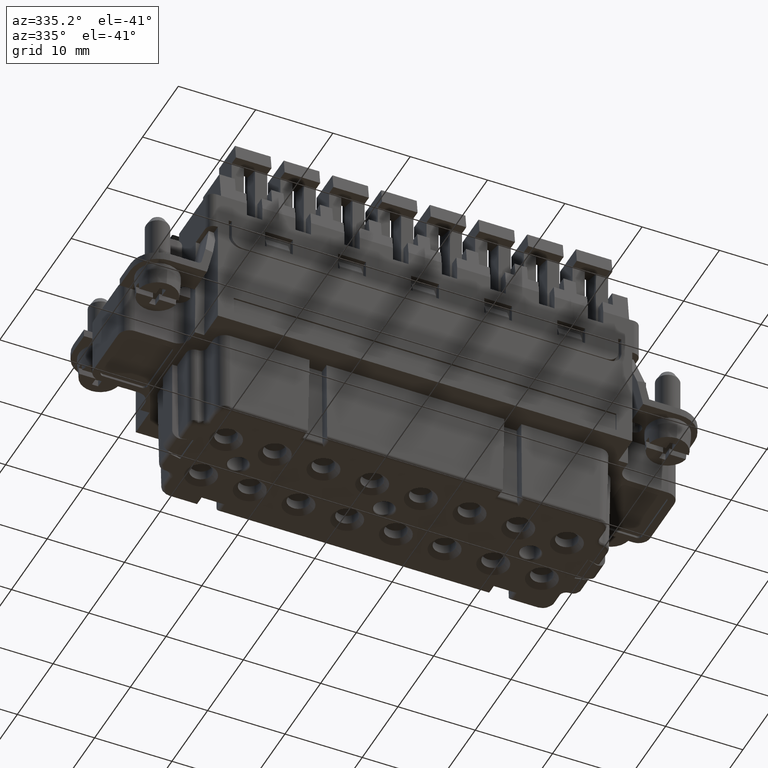
[diagram: clean part render]
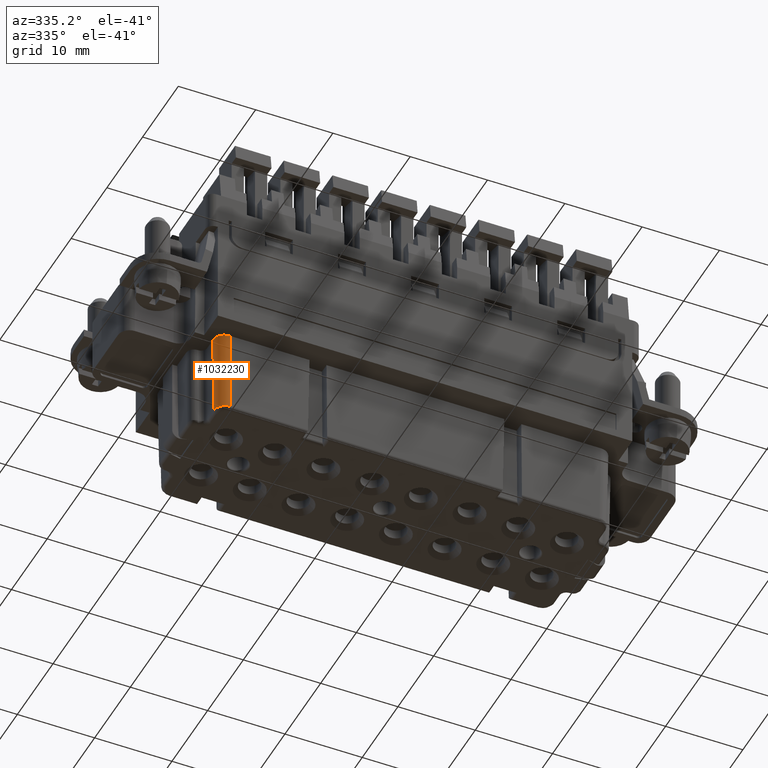
[diagram: same view with one face highlighted and labeled with its STEP entity id]
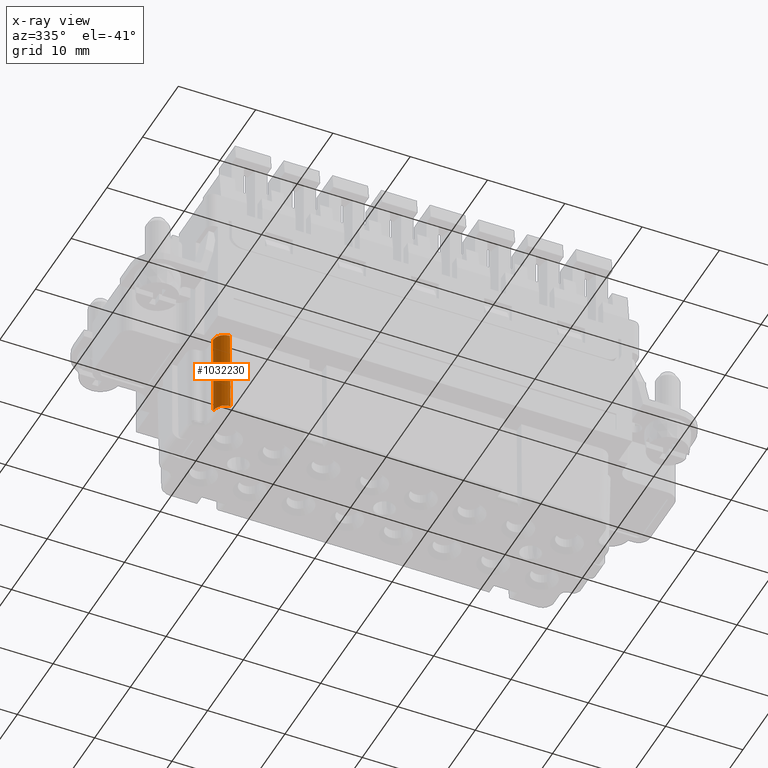
[diagram: x-ray of the same camera — body ghosted, the highlighted face saturated]
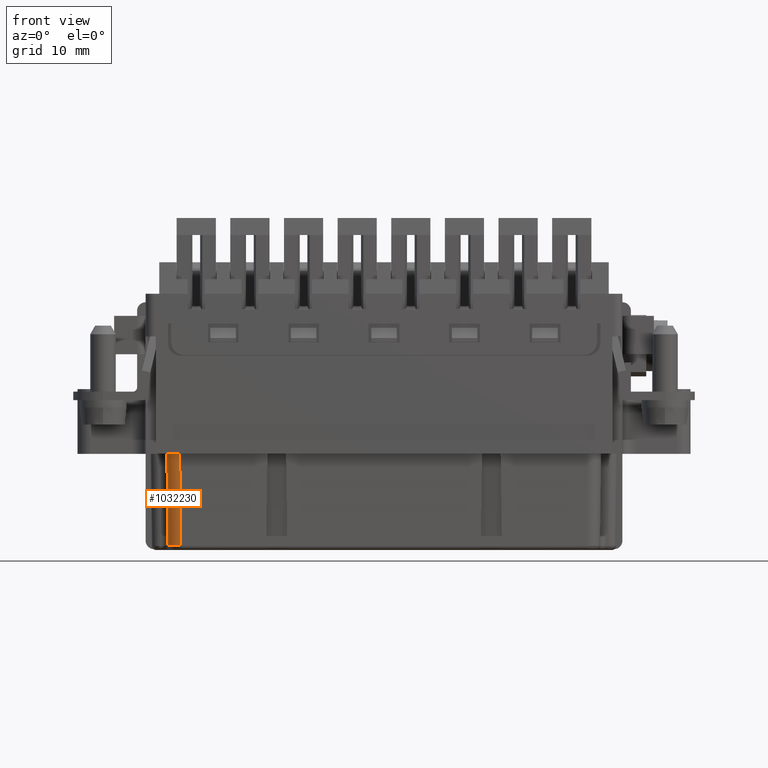
[diagram: same view with one face highlighted and labeled with its STEP entity id]
A machine part, auxiliary view. The second image highlights one B-rep face of the part: STEP entity #1032230.
The next image is the same camera in x-ray: the body ghosted, the highlighted face saturated — about 0% of this face is hidden behind the body in this view.
A second angle (front view) of the same face is appended — the face is thin or edge-on in the first view.
In plain terms, the highlighted cylindrical surface (edge-blend (fillet) strip) has radius 1.5 mm, axis along (0.0131, 0.0131, -0.9998).
Its self-contained STEP definition (entity closure, byte-faithful):
#300480=CARTESIAN_POINT('',(65.2455234913004,44.7836120000009,-7.6));
#300490=VERTEX_POINT('',#300480);
#300520=CARTESIAN_POINT('',(65.2457805196496,46.2837405196505,-7.6));
#300530=DIRECTION('',(0.,0.,-1.));
#300540=DIRECTION('',(0.707106781186358,0.707106781186737,0.));
#300550=AXIS2_PLACEMENT_3D('',#300520,#300530,#300540);
#300560=ELLIPSE('',#300550,1.50025702828951,1.5);
#300570=CARTESIAN_POINT('',(63.745652,46.2834834913619,-7.6));
#300580=VERTEX_POINT('',#300570);
#300590=EDGE_CURVE('',#300490,#300580,#300560,.T.);
#1023480=CARTESIAN_POINT('',(63.4120957426253,45.9499272339872,
17.880365606643));
#1023490=DIRECTION('',(0.0130884743460528,0.0130884743460528,
-0.999828677163536));
#1023500=VECTOR('',#1023490,1.);
#1023510=LINE('',#1023480,#1023500);
#1023520=CARTESIAN_POINT('',(63.8871174206124,46.4249489119748,
-18.4065447977857));
#1023530=VERTEX_POINT('',#1023520);
#1023540=EDGE_CURVE('',#300580,#1023530,#1023510,.T.);
#1024690=CARTESIAN_POINT('',(65.3869889119734,44.9250774206133,
-18.4065447977857));
#1024700=VERTEX_POINT('',#1024690);
#1024750=CARTESIAN_POINT('',(65.3869889119734,44.9250774206133,
-18.4065447977857));
#1024760=CARTESIAN_POINT('',(65.3589237693043,44.9250790232934,
-18.4066672265347));
#1024770=CARTESIAN_POINT('',(65.3308641993031,44.92586800046,
-18.4067861971212));
#1024780=CARTESIAN_POINT('',(65.1102927681627,44.9382737545176,
-18.4076943356165));
#1024790=CARTESIAN_POINT('',(64.9210961111401,44.9861686654939,
-18.4083107751605));
#1024800=CARTESIAN_POINT('',(64.5901085471429,45.1426910995697,
-18.4090718924724));
#1024810=CARTESIAN_POINT('',(64.4482381808989,45.2426008188181,
-18.4092549489655));
#1024820=CARTESIAN_POINT('',(64.3264394998581,45.3643994998589,
-18.4092549489655));
#1024830=CARTESIAN_POINT('',(64.1505775786488,45.5402614210682,
-18.4092549489655));
#1024840=CARTESIAN_POINT('',(64.0212041175825,45.757099603422,
-18.40887337751));
#1024850=CARTESIAN_POINT('',(63.9162496465828,46.1081644344758,
-18.407799702468));
#1024860=CARTESIAN_POINT('',(63.8960561766226,46.2240779207633,
-18.4073821166642));
#1024870=CARTESIAN_POINT('',(63.887910268736,46.3687645163888,
-18.4067864475969));
#1024880=CARTESIAN_POINT('',(63.887119025011,46.396853961305,
-18.4066673578037));
#1024890=CARTESIAN_POINT('',(63.8871174206124,46.4249489119743,
-18.4065447977857));
#1024900=B_SPLINE_CURVE_WITH_KNOTS('',3,(#1024750,#1024760,#1024770,
#1024780,#1024790,#1024800,#1024810,#1024820,#1024830,#1024840,#1024850,
#1024860,#1024870,#1024880,#1024890),.UNSPECIFIED.,.F.,.F.,(4,2,2,3,2,2,
4),(0.,0.0703642815099074,0.553884574403893,0.983449485379828,
1.6036869934883,1.89725520306973,1.96785708763377),.UNSPECIFIED.);
#1024910=EDGE_CURVE('',#1024700,#1023530,#1024900,.T.);
#1032070=CARTESIAN_POINT('',(64.9119672339863,45.9499272339872,17.9));
#1032080=DIRECTION('',(0.0130884743460528,0.0130884743460528,
-0.999828677163536));
#1032090=DIRECTION('',(0.999914327574007,-1.02171976707681E-18,
0.0130895955713445));
#1032100=AXIS2_PLACEMENT_3D('',#1032070,#1032080,#1032090);
#1032110=CYLINDRICAL_SURFACE('',#1032100,1.5);
#1032120=ORIENTED_EDGE('',*,*,#1023540,.T.);
#1032130=ORIENTED_EDGE('',*,*,#300590,.T.);
#1032140=CARTESIAN_POINT('',(64.9119672339863,44.4500557426262,
17.880365606643));
#1032150=DIRECTION('',(0.0130884743460528,0.0130884743460528,
-0.999828677163536));
#1032160=VECTOR('',#1032150,1.);
#1032170=LINE('',#1032140,#1032160);
#1032180=EDGE_CURVE('',#300490,#1024700,#1032170,.T.);
#1032190=ORIENTED_EDGE('',*,*,#1032180,.F.);
#1032200=ORIENTED_EDGE('',*,*,#1024910,.F.);
#1032210=EDGE_LOOP('',(#1032200,#1032190,#1032130,#1032120));
#1032220=FACE_OUTER_BOUND('',#1032210,.T.);
#1032230=ADVANCED_FACE('',(#1032220),#1032110,.T.);